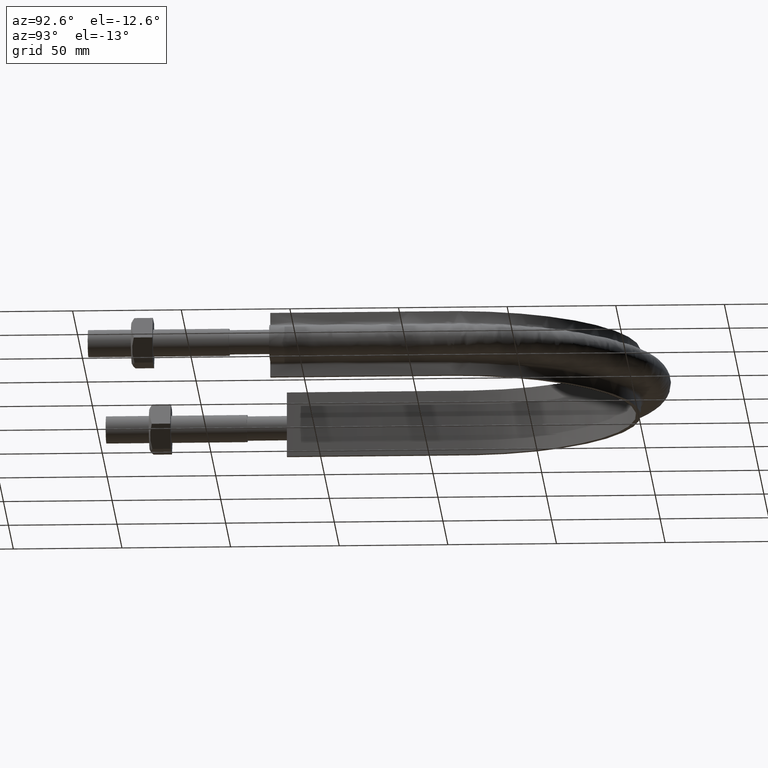
[diagram: clean part render]
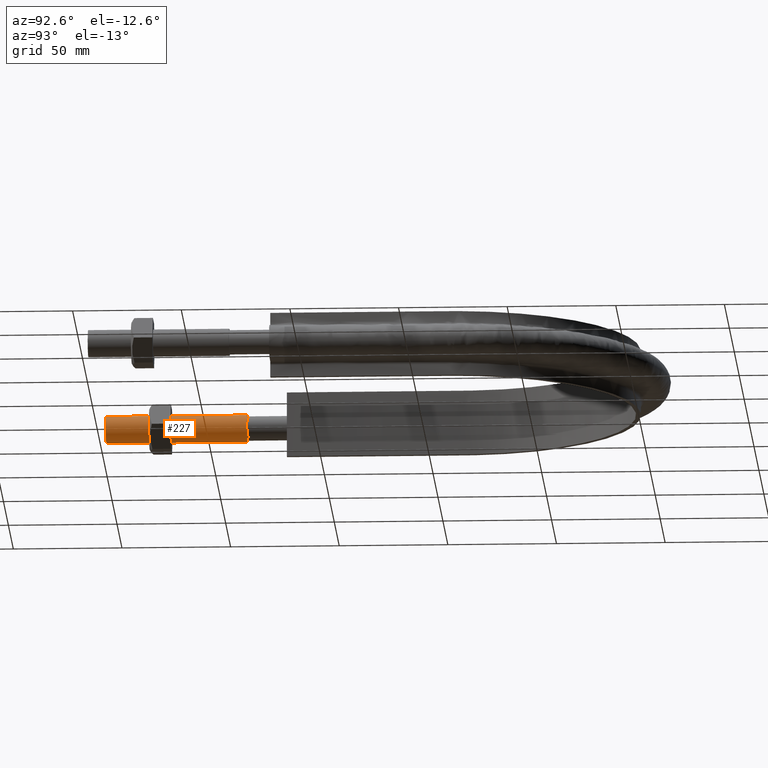
[diagram: same view with one face highlighted and labeled with its STEP entity id]
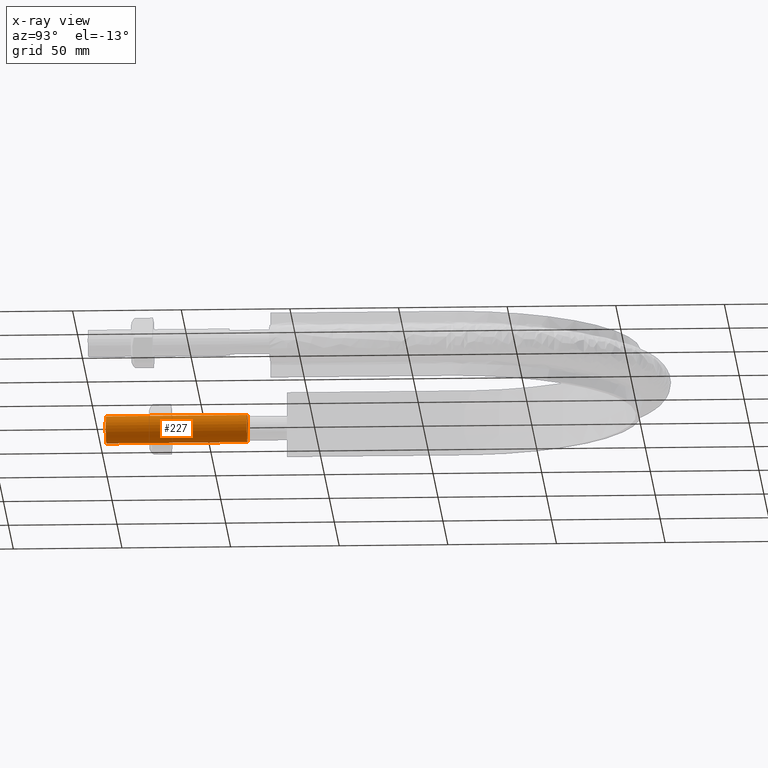
[diagram: x-ray of the same camera — body ghosted, the highlighted face saturated]
A machine part, auxiliary view. The second image highlights one B-rep face of the part: STEP entity #227.
The next image is the same camera in x-ray: the body ghosted, the highlighted face saturated — about 0% of this face is hidden behind the body in this view.
In plain terms, the highlighted cylindrical surface (bore or boss wall) has radius 6.25 mm, axis along (0, 1, -0).
Its self-contained STEP definition (entity closure, byte-faithful):
#227 = ADVANCED_FACE( '', ( #280, #281 ), #282, .T. );
#280 = FACE_OUTER_BOUND( '', #1095, .T. );
#281 = FACE_OUTER_BOUND( '', #1096, .T. );
#282 = CYLINDRICAL_SURFACE( '', #1097, 6.25000000000001 );
#1095 = EDGE_LOOP( '', ( #1433 ) );
#1096 = EDGE_LOOP( '', ( #1434 ) );
#1097 = AXIS2_PLACEMENT_3D( '', #1435, #1436, #1437 );
#1433 = ORIENTED_EDGE( '', *, *, #1676, .T. );
#1434 = ORIENTED_EDGE( '', *, *, #1677, .F. );
#1435 = CARTESIAN_POINT( '', ( -91.0000000000000, 65.0000000000000, -1.98998532496136E-014 ) );
#1436 = DIRECTION( '', ( 2.44921270764475E-016, 1.00000000000000, -3.06151588455594E-016 ) );
#1437 = DIRECTION( '', ( 1.00000000000000, -2.44921270764475E-016, 0.000000000000000 ) );
#1676 = EDGE_CURVE( '', #1777, #1777, #1778, .T. );
#1677 = EDGE_CURVE( '', #1779, #1779, #1780, .T. );
#1777 = VERTEX_POINT( '', #2099 );
#1778 = CIRCLE( '', #2100, 6.25000000000001 );
#1779 = VERTEX_POINT( '', #2101 );
#1780 = CIRCLE( '', #2102, 6.25000000000001 );
#2099 = CARTESIAN_POINT( '', ( -91.0000000000000, 65.0000000000000, -6.25000000000003 ) );
#2100 = AXIS2_PLACEMENT_3D( '', #2394, #2395, #2396 );
#2101 = CARTESIAN_POINT( '', ( -91.0000000000000, 1.19643403799670E-014, -6.25000000000001 ) );
#2102 = AXIS2_PLACEMENT_3D( '', #2397, #2398, #2399 );
#2394 = CARTESIAN_POINT( '', ( -91.0000000000000, 65.0000000000000, -1.98998532496136E-014 ) );
#2395 = DIRECTION( '', ( -2.44921270764475E-016, -1.00000000000000, 3.06151588455594E-016 ) );
#2396 = DIRECTION( '', ( 0.000000000000000, -3.06151588455594E-016, -1.00000000000000 ) );
#2397 = CARTESIAN_POINT( '', ( -91.0000000000000, 1.38777878078145E-014, 3.08148791101958E-030 ) );
#2398 = DIRECTION( '', ( -2.44921270764475E-016, -1.00000000000000, 3.06151588455594E-016 ) );
#2399 = DIRECTION( '', ( 0.000000000000000, -3.06151588455594E-016, -1.00000000000000 ) );